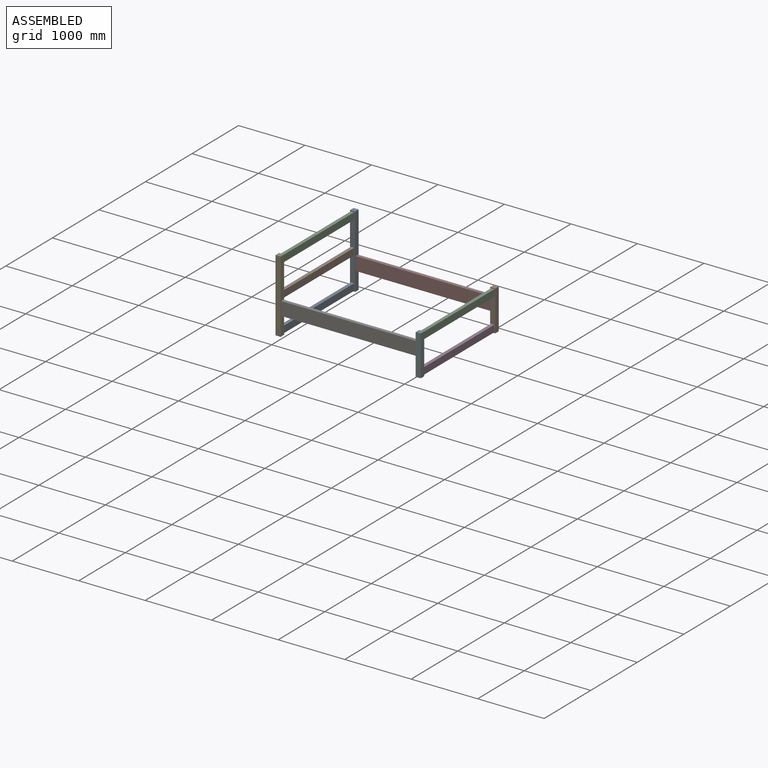
[diagram: assembled view]
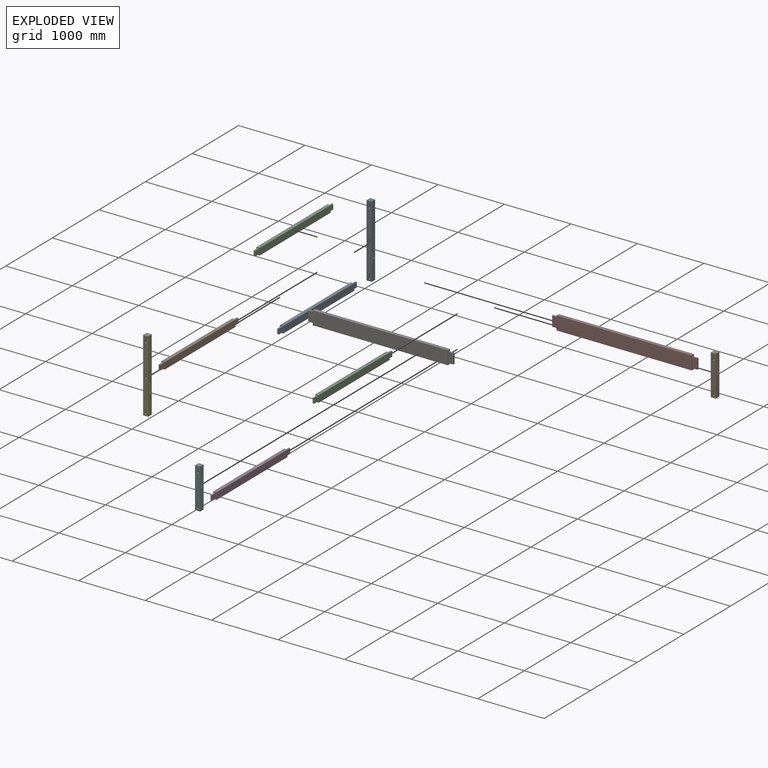
[diagram: exploded view]
GUIDED TOUR — MATED ASSEMBLY (Onshape document d018f66fdc39cf0276b17c4b, AutoMate assembly d018f66fdc39cf0276b17c4b_b09a5b12f9568f4a70d94d2d_86e8d41f319689054da1dff5_default)

This assembly has 11 components, labeled P0..P10 below (a component is one placed occurrence of a part; the same part can appear more than once), held together by 11 mates. A mate is a constraint between two components; its type names the relative motion it leaves free:
  FASTENED — locks the two components together rigidly (no relative motion).
Axis/direction vectors are unit vectors and 'through' points are millimeter coordinates, both in the assembly's world frame.

MATES
  1. FASTENED "Fastened 7": P9 <-> P10, direction (0.000, 1.000, 0.000) through (2096.86, 848.30, -7.22) mm
  2. FASTENED "Fastened 9": P3 <-> P9, direction (0.000, 1.000, 0.000) through (2071.46, 848.30, -489.82) mm
  3. FASTENED "Fastened 6": P5 <-> P10, direction (0.000, -1.000, 0.000) through (2096.86, -828.10, -7.22) mm
  4. FASTENED "Fastened 5": P5 <-> P6, direction (1.000, 0.000, 0.000) through (2122.26, -777.30, -134.22) mm
  5. FASTENED "Fastened 1": P7 <-> P0, direction (-1.000, 0.000, 0.000) through (-62.14, 797.50, -134.22) mm
  6. FASTENED "Fastened 10": P1 <-> P0, direction (0.000, 1.000, 0.000) through (-36.74, 848.30, -7.22) mm
  7. FASTENED "Fastened 8": P7 <-> P9, direction (1.000, 0.000, 0.000) through (2122.26, 797.50, -134.22) mm
  8. FASTENED "Fastened 2": P2 <-> P0, direction (0.000, 1.000, 0.000) through (-36.74, 848.30, 399.18) mm
  9. FASTENED "Fastened 11": P0 <-> P8, direction (0.000, 1.000, 0.000) through (-36.74, 848.30, -489.82) mm
  10. FASTENED "Fastened 4": P6 <-> P4, direction (1.000, 0.000, 0.000) through (-62.14, -802.70, -134.22) mm
  11. FASTENED "Fastened 3": P2 <-> P4, direction (0.000, -1.000, 0.000) through (-11.34, -828.10, 475.38) mm

ASSEMBLY ORDER
  1. P8 — the base component [order verified]
  2. P6 [order verified]
  3. P1 [order verified]
  4. P5 [order verified]
  5. P7 [order verified]
  6. P4 [order verified]
  7. P2 [order verified]
  8. P10 [order verified]
  9. P3 [order verified]
  10. P0 [order verified]
  11. P9 [order verified]
(P0, P2, P4 verified with a relaxed clearance tolerance: the source model stores slight part interference there.)
Order-tag legend:
  [order verified] — this step's position reverses a verified removal order: the component was checked to insert without passing through the ones already placed.

Of the 11 components, 11 carry the full construction recipe — the FeatureScript program that regenerates the part's solid from scratch; the rest are supplied as boundary geometry only.
Each toured component is shown spotlighted twice — in the assembled view, then in the exploded view, where a leader line traces a displaced component back to its assembled socket (saturated green if recipe-attached, orange if geometry-only; every other component desaturated gray) — followed by its recipe or geometry summary and the mates that hold it.
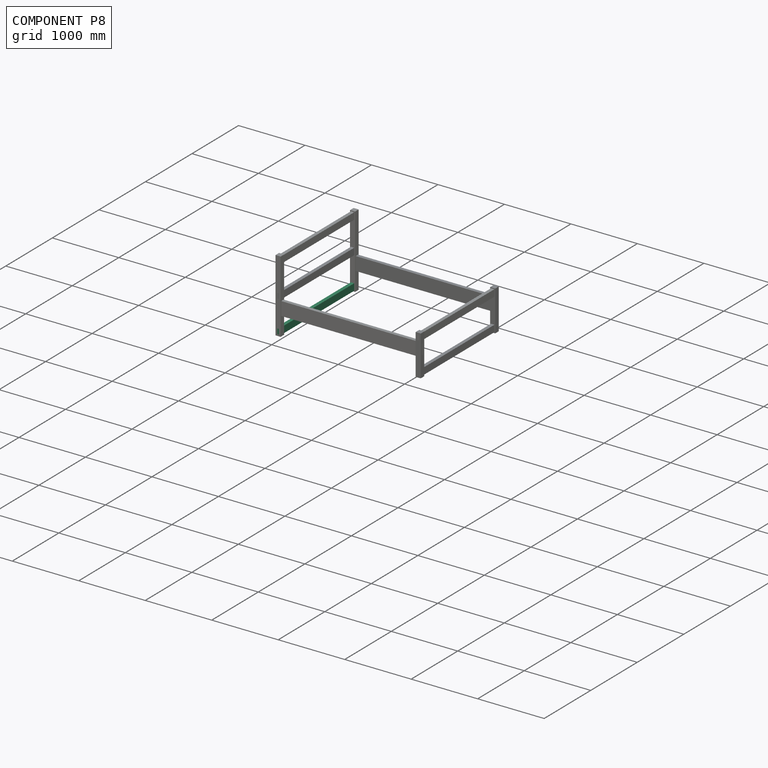
[diagram: component P8 — assembled]
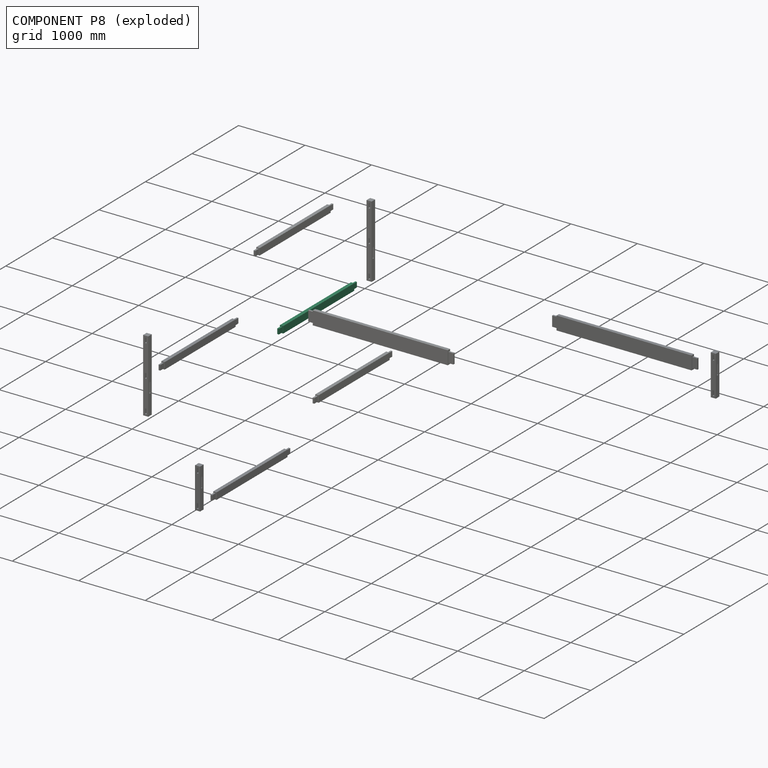
[diagram: component P8 — exploded]
COMPONENT P8 — same part as P1 (CADFS 00378331); its construction recipe is shown at P1.
Held by: FASTENED mate "Fastened 11" to P0.
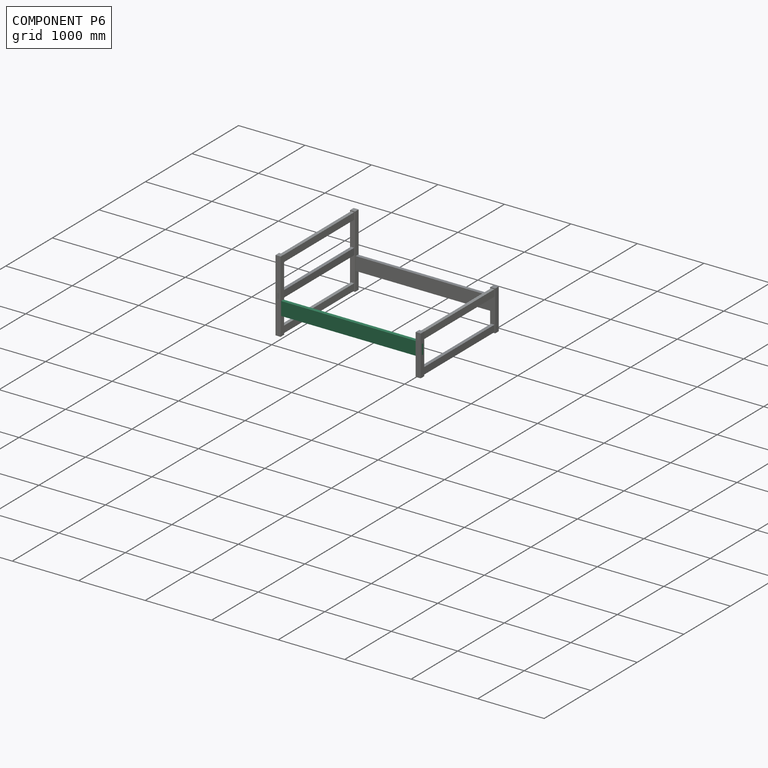
[diagram: component P6 — assembled]
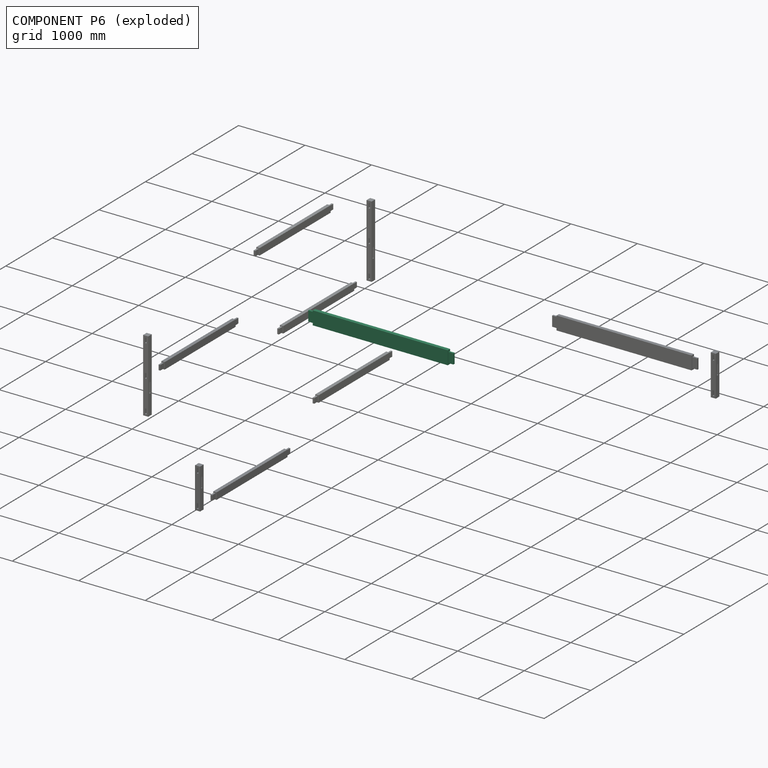
[diagram: component P6 — exploded]
COMPONENT P6 — recipe-attached (CADFS 00378326, mesh-verified: the recipe's output STEP matches this component's geometry to below the mesh-comparison resolution (tessellation chordal tolerance ~3.29 mm)).
Held by: FASTENED mate "Fastened 5" to P5; FASTENED mate "Fastened 4" to P4.
Construction recipe (FeatureScript — the CAD program that rebuilds this solid; sketch coordinates are in the units given by the * unit suffixes, e.g. mm):

FeatureScript 1511;
import(path : "onshape/std/geometry.fs", version : "1511.0");
import(path : "onshape/std/common.fs", version : "1511.0");
const mm = millimeter;
const VERTEX = EntityType.VERTEX;
const EDGE = EntityType.EDGE;
const FACE = EntityType.FACE;
const BODY = EntityType.BODY;
function v(x, y){return vector(x, y);}
function OD(order){return orderDisambiguation(order);}
function OSD(set){return originalSetDisambiguation(set);}
function TD(topology){return topologyDisambiguation(topology);}
function TDD(query){return trueDependencyDisambiguation(query);}
function sQuery(a, b, c) {return sketchEntityQuery(a, b, c);}

annotation { "Feature Type Name" : "Feature", "Feature Type Description" : "" }
export const myFeature = defineFeature(function(context is Context, id is Id, definition is map)
    precondition{}
    {
        {
            var Q0;
            Q0=qCreatedBy(makeId("Front.planeOp"),FACE);
            var sketch = newSketch(context, id + "F0", { "sketchPlane" : qUnion([Q0])});
            skLineSegment(sketch, "E0.bottom", {"start": v(-1016, 101.6) * mm, "end": v(1016, 101.6) * mm});
            skLineSegment(sketch, "E0.top", {"start": v(-1016, -101.6) * mm, "end": v(1016, -101.6) * mm});
            skLineSegment(sketch, "E0.left", {"start": v(-1016, 101.6) * mm, "end": v(-1016, -101.6) * mm});
            skLineSegment(sketch, "E0.right", {"start": v(1016, 101.6) * mm, "end": v(1016, -101.6) * mm});
            skSolve(sketch);
        }
        {
            var Q0;
            Q0=makeQuery(id+"F0.imprint","IMPRINT",FACE,{"disambiguationData":[TD([[makeQuery(id+"F0.imprint","IMPRINT",EDGE,{"derivedFrom":sQuery(id+"F0.wireOp",EDGE,"E0.bottom")}),-1.0]])]});
            extrude(context, id + "F1", {"entities" : qUnion([Q0]), "depth" : 25.4 * mm, "hasSecondDirection" : true, "secondDirectionOppositeDirection" : true, "secondDirectionDepth" : 25.4 * mm});
        }
        {
            var Q0;
            Q0=makeQuery(id+"F1.opExtrude","SWEPT_FACE",FACE,{"disambiguationData":[OSD([sQuery(id+"F0.wireOp",EDGE,"E0.right")])]});
            var sketch = newSketch(context, id + "F2", { "sketchPlane" : qUnion([Q0])});
            skLineSegment(sketch, "E1.bottom", {"start": v(-12.7, 76.2) * mm, "end": v(12.7, 76.2) * mm});
            skLineSegment(sketch, "E1.top", {"start": v(-12.7, -76.2) * mm, "end": v(12.7, -76.2) * mm});
            skLineSegment(sketch, "E1.left", {"start": v(-12.7, 76.2) * mm, "end": v(-12.7, -76.2) * mm});
            skLineSegment(sketch, "E1.right", {"start": v(12.7, 76.2) * mm, "end": v(12.7, -76.2) * mm});
            skSolve(sketch);
        }
        {
            var Q0;
            Q0=makeQuery(id+"F2.imprint","IMPRINT",FACE,{"disambiguationData":[TD([[makeQuery(id+"F2.imprint","IMPRINT",EDGE,{"derivedFrom":sQuery(id+"F2.wireOp",EDGE,"E1.bottom")}),-1.0]])]});
            extrude(context, id + "F3", {"entities" : qUnion([Q0]), "operationType" : NewBodyOperationType.ADD, "depth" : 76.2 * mm});
        }
        {
            var Q0;
            Q0=makeQuery(id+"F1.opExtrude","SWEPT_FACE",FACE,{"disambiguationData":[OSD([sQuery(id+"F0.wireOp",EDGE,"E0.left")])]});
            var sketch = newSketch(context, id + "F4", { "sketchPlane" : qUnion([Q0])});
            skLineSegment(sketch, "E2.bottom", {"start": v(-12.7, 76.2) * mm, "end": v(12.7, 76.2) * mm});
            skLineSegment(sketch, "E2.top", {"start": v(-12.7, -76.2) * mm, "end": v(12.7, -76.2) * mm});
            skLineSegment(sketch, "E2.left", {"start": v(-12.7, 76.2) * mm, "end": v(-12.7, -76.2) * mm});
            skLineSegment(sketch, "E2.right", {"start": v(12.7, 76.2) * mm, "end": v(12.7, -76.2) * mm});
            skSolve(sketch);
        }
        {
            var Q0;
            Q0=makeQuery(id+"F4.imprint","IMPRINT",FACE,{"disambiguationData":[TD([[makeQuery(id+"F4.imprint","IMPRINT",EDGE,{"derivedFrom":sQuery(id+"F4.wireOp",EDGE,"E2.bottom")}),-1.0]])]});
            extrude(context, id + "F5", {"entities" : qUnion([Q0]), "operationType" : NewBodyOperationType.ADD, "depth" : 76.2 * mm});
        }
    });
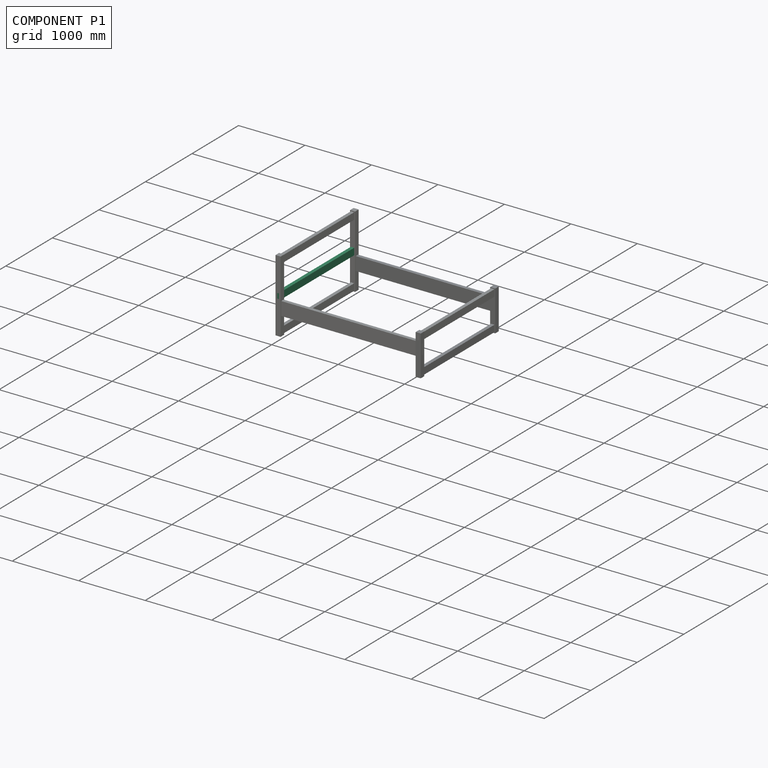
[diagram: component P1 — assembled]
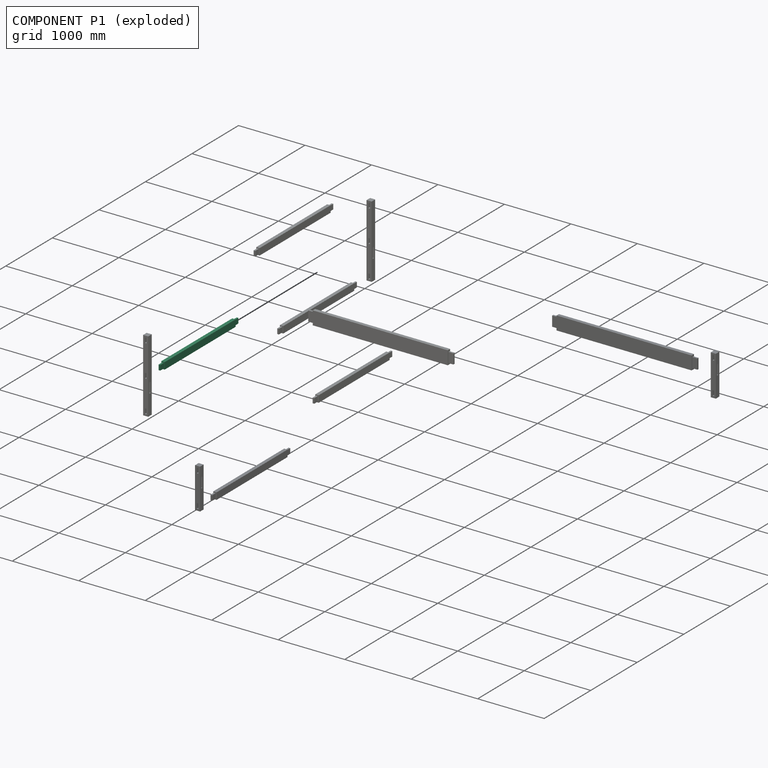
[diagram: component P1 — exploded]
COMPONENT P1 — recipe-attached (CADFS 00378331, mesh-verified: the recipe's output STEP matches this component's geometry to below the mesh-comparison resolution (tessellation chordal tolerance ~2.52 mm)).
Held by: FASTENED mate "Fastened 10" to P0.
Construction recipe (FeatureScript — the CAD program that rebuilds this solid; sketch coordinates are in the units given by the * unit suffixes, e.g. mm):

FeatureScript 1511;
import(path : "onshape/std/geometry.fs", version : "1511.0");
import(path : "onshape/std/common.fs", version : "1511.0");
const mm = millimeter;
const VERTEX = EntityType.VERTEX;
const EDGE = EntityType.EDGE;
const FACE = EntityType.FACE;
const BODY = EntityType.BODY;
function v(x, y){return vector(x, y);}
function OD(order){return orderDisambiguation(order);}
function OSD(set){return originalSetDisambiguation(set);}
function TD(topology){return topologyDisambiguation(topology);}
function TDD(query){return trueDependencyDisambiguation(query);}
function sQuery(a, b, c) {return sketchEntityQuery(a, b, c);}

annotation { "Feature Type Name" : "Feature", "Feature Type Description" : "" }
export const myFeature = defineFeature(function(context is Context, id is Id, definition is map)
    precondition{}
    {
        {
            var Q0;
            Q0=qCreatedBy(makeId("Right.planeOp"),FACE);
            var sketch = newSketch(context, id + "F0", { "sketchPlane" : qUnion([Q0])});
            skLineSegment(sketch, "E0.bottom", {"start": v(-762, 50.8) * mm, "end": v(762, 50.8) * mm});
            skLineSegment(sketch, "E0.top", {"start": v(-762, -50.8) * mm, "end": v(762, -50.8) * mm});
            skLineSegment(sketch, "E0.left", {"start": v(-762, 50.8) * mm, "end": v(-762, -50.8) * mm});
            skLineSegment(sketch, "E0.right", {"start": v(762, 50.8) * mm, "end": v(762, -50.8) * mm});
            skSolve(sketch);
        }
        {
            var Q0;
            Q0=makeQuery(id+"F0.imprint","IMPRINT",FACE,{"disambiguationData":[TD([[makeQuery(id+"F0.imprint","IMPRINT",EDGE,{"derivedFrom":sQuery(id+"F0.wireOp",EDGE,"E0.bottom")}),-1.0]])]});
            extrude(context, id + "F1", {"entities" : qUnion([Q0]), "depth" : 25.4 * mm, "hasSecondDirection" : true, "secondDirectionOppositeDirection" : true, "secondDirectionDepth" : 25.4 * mm});
        }
        {
            var Q0;
            Q0=makeQuery(id+"F1.opExtrude","SWEPT_FACE",FACE,{"disambiguationData":[OSD([sQuery(id+"F0.wireOp",EDGE,"E0.right")])]});
            var sketch = newSketch(context, id + "F2", { "sketchPlane" : qUnion([Q0])});
            skLineSegment(sketch, "E1.bottom", {"start": v(-12.7, 38.1) * mm, "end": v(12.7, 38.1) * mm});
            skLineSegment(sketch, "E1.top", {"start": v(-12.7, -38.1) * mm, "end": v(12.7, -38.1) * mm});
            skLineSegment(sketch, "E1.left", {"start": v(-12.7, 38.1) * mm, "end": v(-12.7, -38.1) * mm});
            skLineSegment(sketch, "E1.right", {"start": v(12.7, 38.1) * mm, "end": v(12.7, -38.1) * mm});
            skSolve(sketch);
        }
        {
            var Q0;
            Q0=makeQuery(id+"F2.imprint","IMPRINT",FACE,{"disambiguationData":[TD([[makeQuery(id+"F2.imprint","IMPRINT",EDGE,{"derivedFrom":sQuery(id+"F2.wireOp",EDGE,"E1.bottom")}),-1.0]])]});
            extrude(context, id + "F3", {"entities" : qUnion([Q0]), "operationType" : NewBodyOperationType.ADD, "depth" : 76.2 * mm});
        }
        {
            var Q0;
            Q0=makeQuery(id+"F1.opExtrude","SWEPT_FACE",FACE,{"disambiguationData":[OSD([sQuery(id+"F0.wireOp",EDGE,"E0.left")])]});
            var sketch = newSketch(context, id + "F4", { "sketchPlane" : qUnion([Q0])});
            skLineSegment(sketch, "E2.bottom", {"start": v(-12.7, 38.1) * mm, "end": v(12.7, 38.1) * mm});
            skLineSegment(sketch, "E2.top", {"start": v(-12.7, -38.1) * mm, "end": v(12.7, -38.1) * mm});
            skLineSegment(sketch, "E2.left", {"start": v(-12.7, 38.1) * mm, "end": v(-12.7, -38.1) * mm});
            skLineSegment(sketch, "E2.right", {"start": v(12.7, 38.1) * mm, "end": v(12.7, -38.1) * mm});
            skSolve(sketch);
        }
        {
            var Q0;
            Q0=makeQuery(id+"F4.imprint","IMPRINT",FACE,{"disambiguationData":[TD([[makeQuery(id+"F4.imprint","IMPRINT",EDGE,{"derivedFrom":sQuery(id+"F4.wireOp",EDGE,"E2.bottom")}),-1.0]])]});
            extrude(context, id + "F5", {"entities" : qUnion([Q0]), "operationType" : NewBodyOperationType.ADD, "depth" : 76.2 * mm});
        }
    });
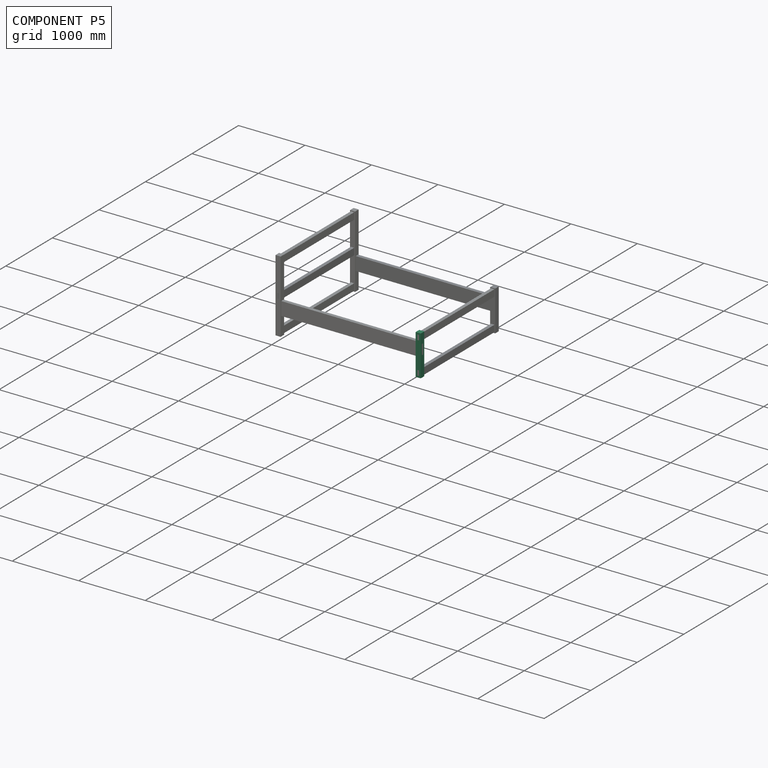
[diagram: component P5 — assembled]
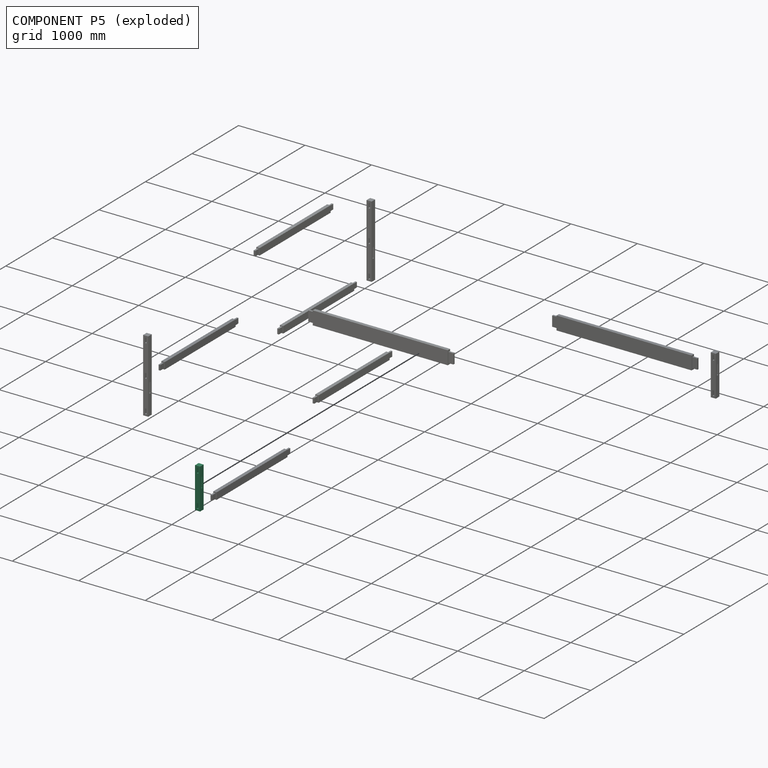
[diagram: component P5 — exploded]
COMPONENT P5 — recipe-attached (CADFS 00378308, mesh-verified: the recipe's output STEP matches this component's geometry to below the mesh-comparison resolution (tessellation chordal tolerance ~0.929 mm)).
Held by: FASTENED mate "Fastened 6" to P10; FASTENED mate "Fastened 5" to P6.
Construction recipe (FeatureScript — the CAD program that rebuilds this solid; sketch coordinates are in the units given by the * unit suffixes, e.g. mm):

FeatureScript 1511;
import(path : "onshape/std/geometry.fs", version : "1511.0");
import(path : "onshape/std/common.fs", version : "1511.0");
const mm = millimeter;
const VERTEX = EntityType.VERTEX;
const EDGE = EntityType.EDGE;
const FACE = EntityType.FACE;
const BODY = EntityType.BODY;
function v(x, y){return vector(x, y);}
function OD(order){return orderDisambiguation(order);}
function OSD(set){return originalSetDisambiguation(set);}
function TD(topology){return topologyDisambiguation(topology);}
function TDD(query){return trueDependencyDisambiguation(query);}
function sQuery(a, b, c) {return sketchEntityQuery(a, b, c);}

annotation { "Feature Type Name" : "Feature", "Feature Type Description" : "" }
export const myFeature = defineFeature(function(context is Context, id is Id, definition is map)
    precondition{}
    {
        {
            var Q0;
            Q0=qCreatedBy(makeId("Right.planeOp"),FACE);
            var sketch = newSketch(context, id + "F0", { "sketchPlane" : qUnion([Q0])});
            skLineSegment(sketch, "E0.bottom", {"start": v(-12.7, -88.9) * mm, "end": v(12.7, -88.9) * mm});
            skLineSegment(sketch, "E0.top", {"start": v(-12.7, -241.3) * mm, "end": v(12.7, -241.3) * mm});
            skLineSegment(sketch, "E0.left", {"start": v(-12.7, -88.9) * mm, "end": v(-12.7, -241.3) * mm});
            skLineSegment(sketch, "E0.right", {"start": v(12.7, -88.9) * mm, "end": v(12.7, -241.3) * mm});
            skLineSegment(sketch, "E1.bottom", {"start": v(-38.1, 63.5) * mm, "end": v(38.1, 63.5) * mm});
            skLineSegment(sketch, "E1.top", {"start": v(-38.1, -546.1) * mm, "end": v(38.1, -546.1) * mm});
            skLineSegment(sketch, "E1.left", {"start": v(-38.1, 63.5) * mm, "end": v(-38.1, -546.1) * mm});
            skLineSegment(sketch, "E1.right", {"start": v(38.1, 63.5) * mm, "end": v(38.1, -546.1) * mm});
            skSolve(sketch);
        }
        {
            var Q0;
            Q0 = qSketchRegion(id + "F0", true);
            extrude(context, id + "F1", {"entities" : qUnion([Q0]), "depth" : 38.1 * mm, "hasSecondDirection" : true, "secondDirectionOppositeDirection" : true, "secondDirectionDepth" : 38.1 * mm});
        }
        {
            var Q0;
            Q0=makeQuery(id+"F1.opExtrude","SWEPT_FACE",FACE,{"disambiguationData":[OSD([sQuery(id+"F0.wireOp",EDGE,"E1.left")])]});
            var sketch = newSketch(context, id + "F2", { "sketchPlane" : qUnion([Q0])});
            skLineSegment(sketch, "E2.bottom", {"start": v(-12.7, 38.1) * mm, "end": v(12.7, 38.1) * mm});
            skLineSegment(sketch, "E2.top", {"start": v(-12.7, -38.1) * mm, "end": v(12.7, -38.1) * mm});
            skLineSegment(sketch, "E2.left", {"start": v(-12.7, 38.1) * mm, "end": v(-12.7, -38.1) * mm});
            skLineSegment(sketch, "E2.right", {"start": v(12.7, 38.1) * mm, "end": v(12.7, -38.1) * mm});
            skLineSegment(sketch, "E3.bottom", {"start": v(-12.7, -444.5) * mm, "end": v(12.7, -444.5) * mm});
            skLineSegment(sketch, "E3.top", {"start": v(-12.7, -520.7) * mm, "end": v(12.7, -520.7) * mm});
            skLineSegment(sketch, "E3.left", {"start": v(-12.7, -444.5) * mm, "end": v(-12.7, -520.7) * mm});
            skLineSegment(sketch, "E3.right", {"start": v(12.7, -444.5) * mm, "end": v(12.7, -520.7) * mm});
            skSolve(sketch);
        }
        {
            var Q0;
            Q0=makeQuery(id+"F2.imprint","IMPRINT",FACE,{"disambiguationData":[TD([[makeQuery(id+"F2.imprint","IMPRINT",EDGE,{"derivedFrom":sQuery(id+"F2.wireOp",EDGE,"E2.bottom")}),-1.0]])]});
            var Q1;
            Q1=makeQuery(id+"F2.imprint","IMPRINT",FACE,{"disambiguationData":[TD([[makeQuery(id+"F2.imprint","IMPRINT",EDGE,{"derivedFrom":sQuery(id+"F2.wireOp",EDGE,"E3.bottom")}),-1.0]])]});
            extrude(context, id + "F3", {"entities" : qUnion([Q0, Q1]), "operationType" : NewBodyOperationType.REMOVE, "oppositeDirection" : true, "depth" : 101.6 * mm});
        }
    });
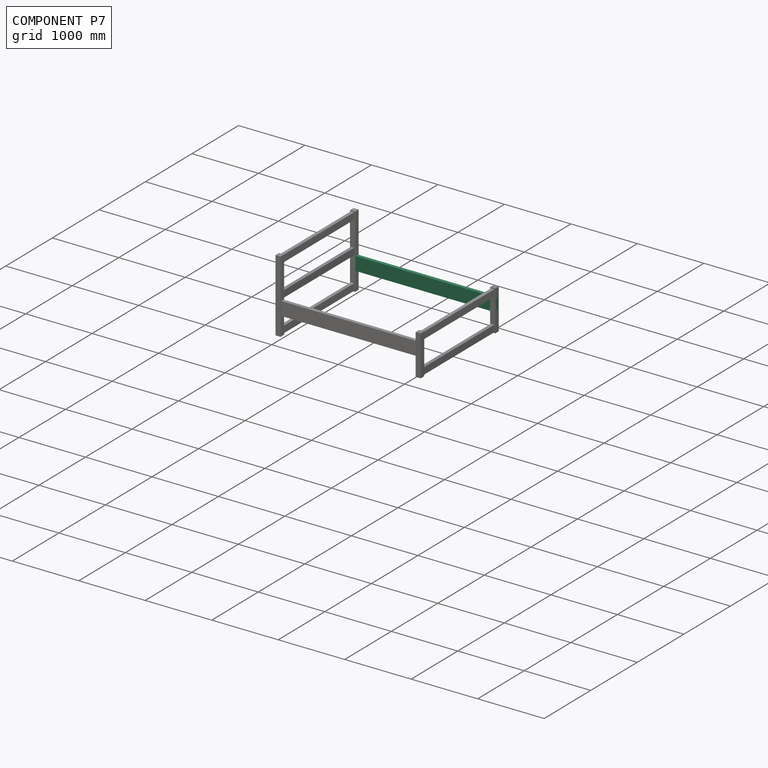
[diagram: component P7 — assembled]
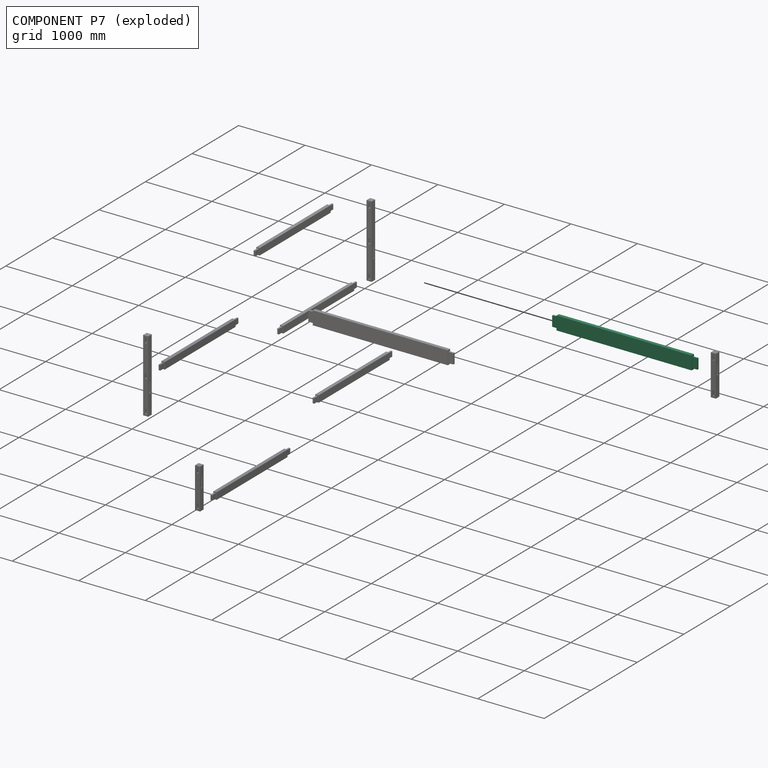
[diagram: component P7 — exploded]
COMPONENT P7 — same part as P6 (CADFS 00378326); its construction recipe is shown at P6.
Held by: FASTENED mate "Fastened 1" to P0; FASTENED mate "Fastened 8" to P9.
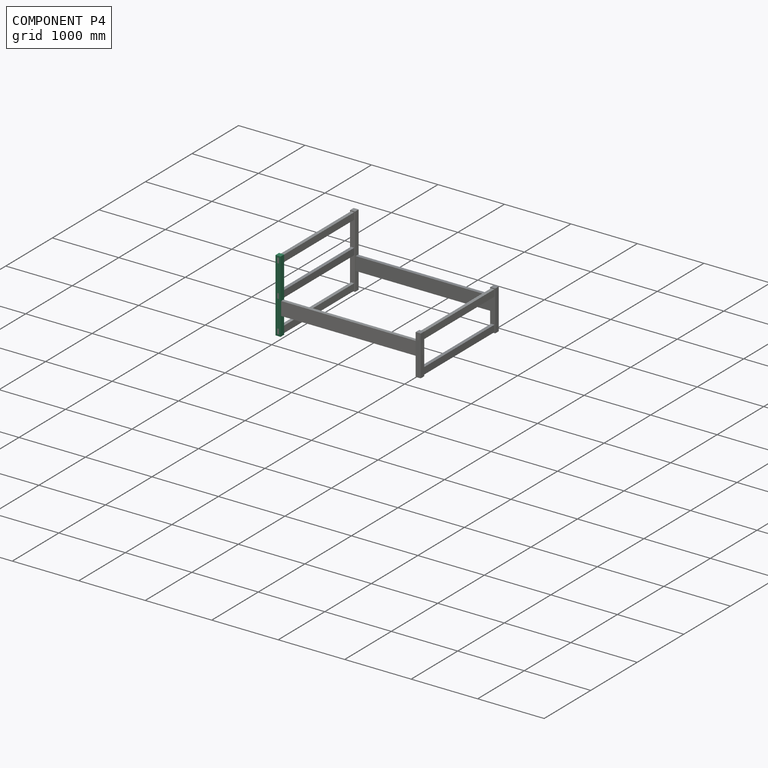
[diagram: component P4 — assembled]
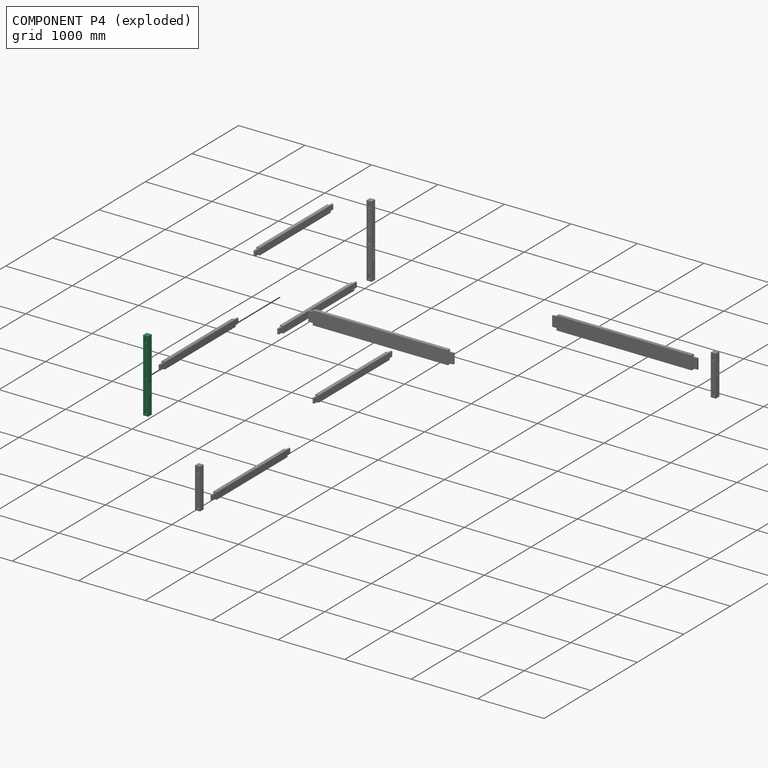
[diagram: component P4 — exploded]
COMPONENT P4 — same part as P0 (CADFS 00378162); its construction recipe is shown at P0.
Held by: FASTENED mate "Fastened 4" to P6; FASTENED mate "Fastened 3" to P2.
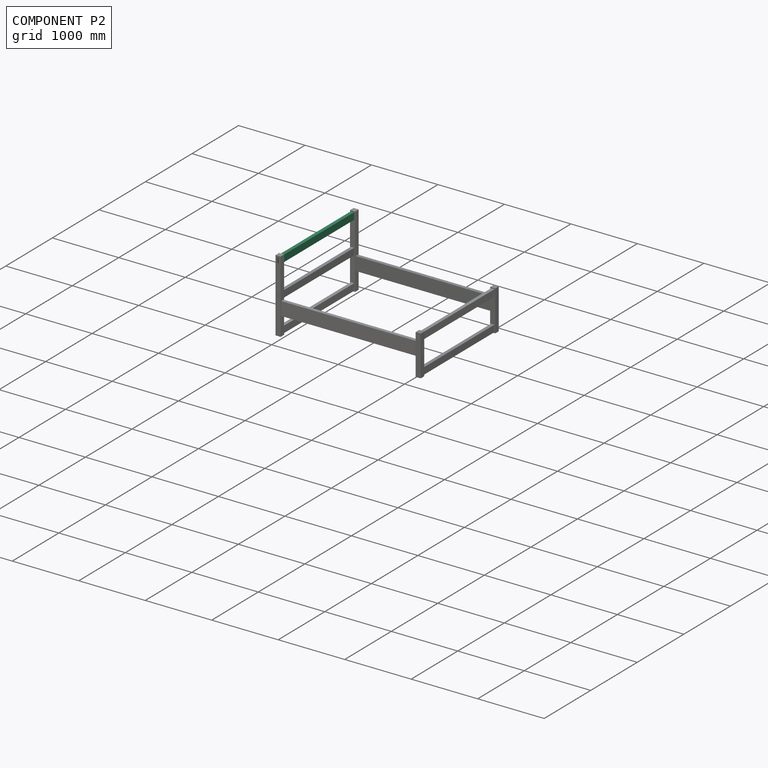
[diagram: component P2 — assembled]
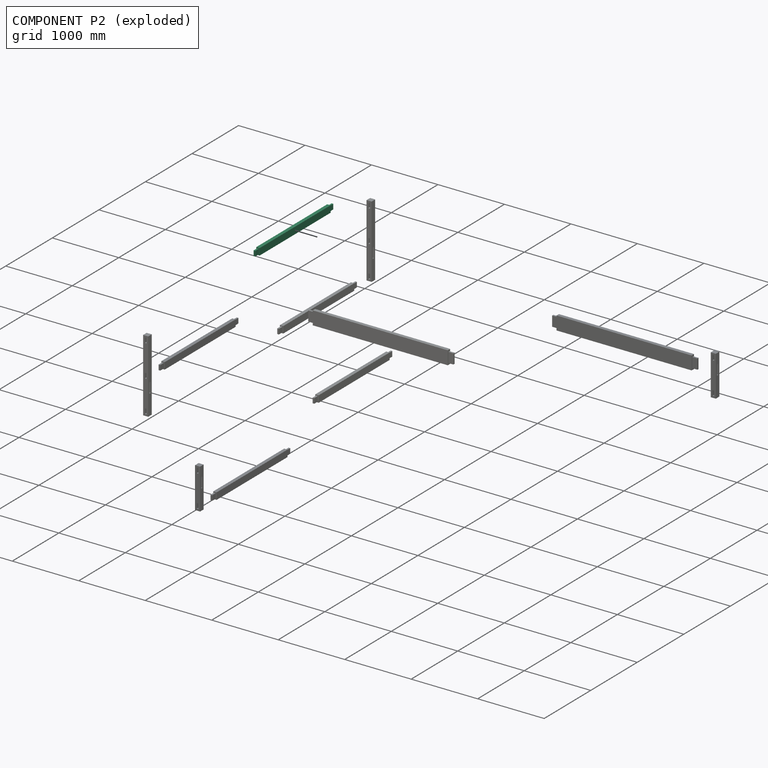
[diagram: component P2 — exploded]
COMPONENT P2 — same part as P1 (CADFS 00378331); its construction recipe is shown at P1.
Held by: FASTENED mate "Fastened 2" to P0; FASTENED mate "Fastened 3" to P4.
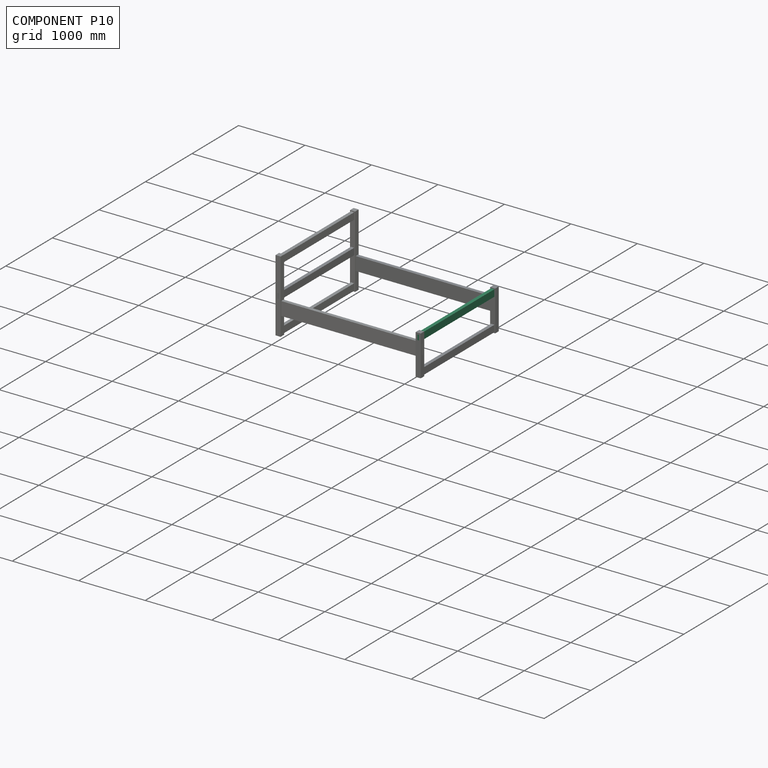
[diagram: component P10 — assembled]
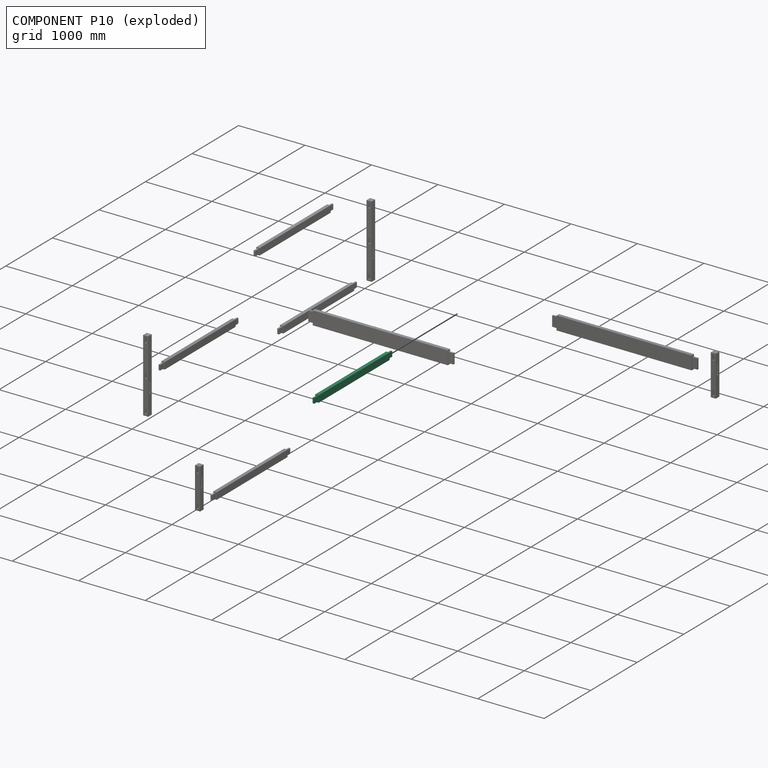
[diagram: component P10 — exploded]
COMPONENT P10 — same part as P1 (CADFS 00378331); its construction recipe is shown at P1.
Held by: FASTENED mate "Fastened 7" to P9; FASTENED mate "Fastened 6" to P5.
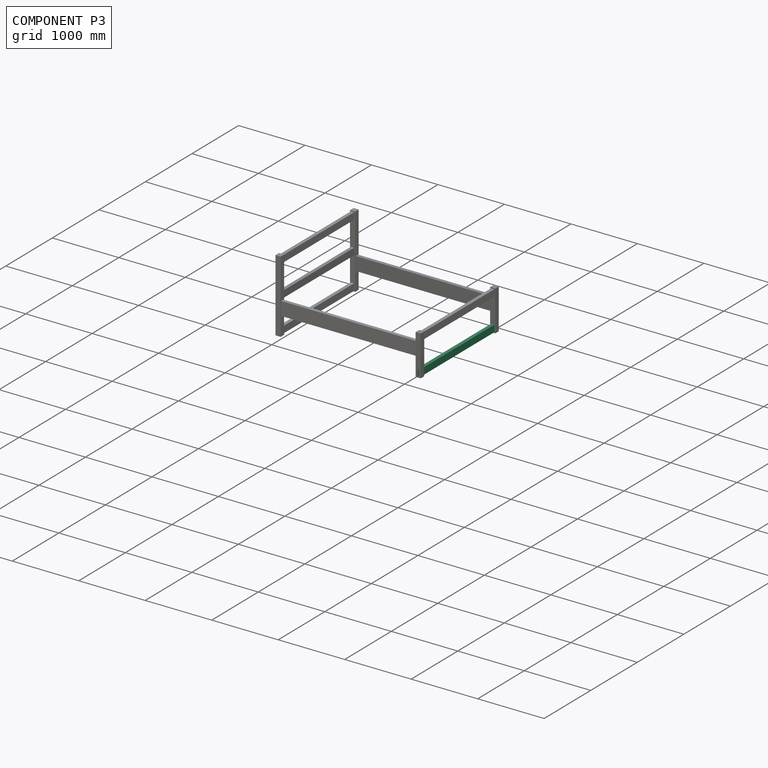
[diagram: component P3 — assembled]
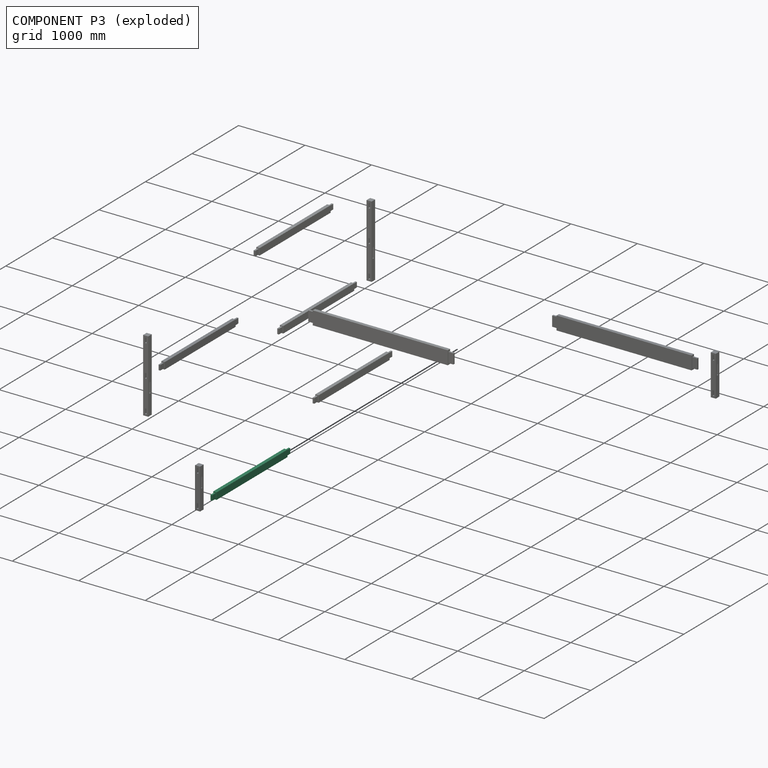
[diagram: component P3 — exploded]
COMPONENT P3 — same part as P1 (CADFS 00378331); its construction recipe is shown at P1.
Held by: FASTENED mate "Fastened 9" to P9.
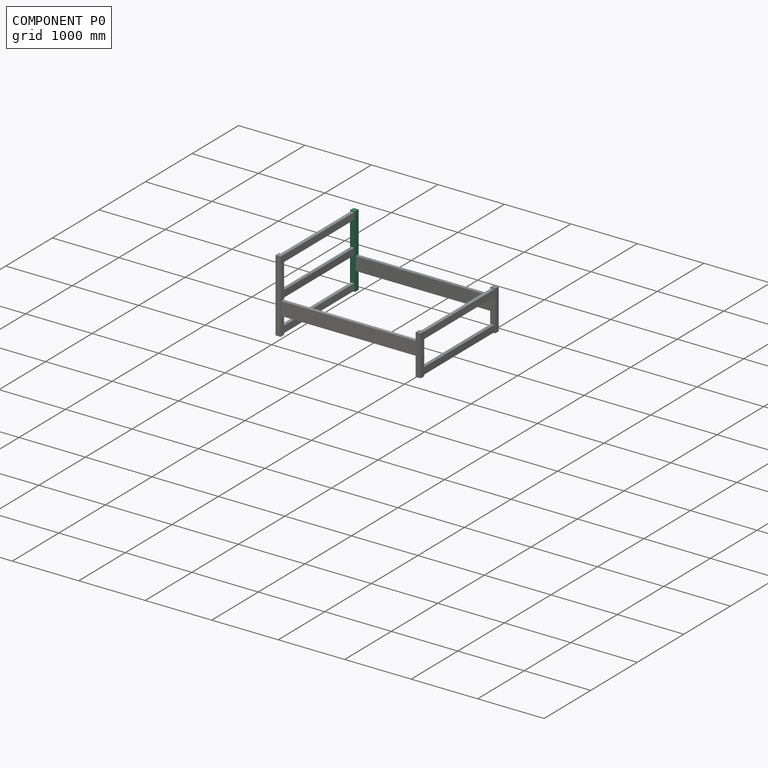
[diagram: component P0 — assembled]
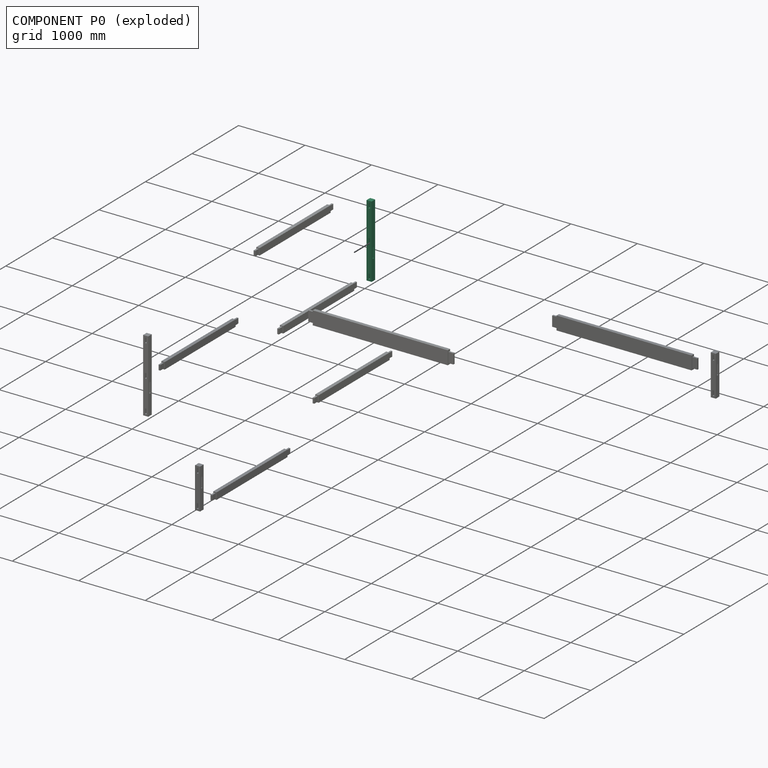
[diagram: component P0 — exploded]
COMPONENT P0 — recipe-attached (CADFS 00378162, mesh-verified: the recipe's output STEP matches this component's geometry to below the mesh-comparison resolution (tessellation chordal tolerance ~1.65 mm)).
Held by: FASTENED mate "Fastened 1" to P7; FASTENED mate "Fastened 10" to P1; FASTENED mate "Fastened 2" to P2; FASTENED mate "Fastened 11" to P8.
Construction recipe (FeatureScript — the CAD program that rebuilds this solid; sketch coordinates are in the units given by the * unit suffixes, e.g. mm):

FeatureScript 1511;
import(path : "onshape/std/geometry.fs", version : "1511.0");
import(path : "onshape/std/common.fs", version : "1511.0");
const mm = millimeter;
const VERTEX = EntityType.VERTEX;
const EDGE = EntityType.EDGE;
const FACE = EntityType.FACE;
const BODY = EntityType.BODY;
function v(x, y){return vector(x, y);}
function OD(order){return orderDisambiguation(order);}
function OSD(set){return originalSetDisambiguation(set);}
function TD(topology){return topologyDisambiguation(topology);}
function TDD(query){return trueDependencyDisambiguation(query);}
function sQuery(a, b, c) {return sketchEntityQuery(a, b, c);}

annotation { "Feature Type Name" : "Feature", "Feature Type Description" : "" }
export const myFeature = defineFeature(function(context is Context, id is Id, definition is map)
    precondition{}
    {
        {
            var Q0;
            Q0=qCreatedBy(makeId("Front.planeOp"),FACE);
            var sketch = newSketch(context, id + "F0", { "sketchPlane" : qUnion([Q0])});
            skLineSegment(sketch, "E0.bottom", {"start": v(-38.1, 546.1) * mm, "end": v(38.1, 546.1) * mm});
            skLineSegment(sketch, "E0.top", {"start": v(-38.1, -546.1) * mm, "end": v(38.1, -546.1) * mm});
            skLineSegment(sketch, "E0.left", {"start": v(-38.1, 546.1) * mm, "end": v(-38.1, -546.1) * mm});
            skLineSegment(sketch, "E0.right", {"start": v(38.1, 546.1) * mm, "end": v(38.1, -546.1) * mm});
            skLineSegment(sketch, "E1.bottom", {"start": v(-12.7, 520.7) * mm, "end": v(12.7, 520.7) * mm});
            skLineSegment(sketch, "E1.top", {"start": v(-12.7, 444.5) * mm, "end": v(12.7, 444.5) * mm});
            skLineSegment(sketch, "E1.left", {"start": v(-12.7, 520.7) * mm, "end": v(-12.7, 444.5) * mm});
            skLineSegment(sketch, "E1.right", {"start": v(12.7, 520.7) * mm, "end": v(12.7, 444.5) * mm});
            skLineSegment(sketch, "E2.bottom", {"start": v(-12.7, 38.1) * mm, "end": v(12.7, 38.1) * mm});
            skLineSegment(sketch, "E2.top", {"start": v(-12.7, -38.1) * mm, "end": v(12.7, -38.1) * mm});
            skLineSegment(sketch, "E2.left", {"start": v(-12.7, 38.1) * mm, "end": v(-12.7, -38.1) * mm});
            skLineSegment(sketch, "E2.right", {"start": v(12.7, 38.1) * mm, "end": v(12.7, -38.1) * mm});
            skLineSegment(sketch, "E3.bottom", {"start": v(-12.7, -444.5) * mm, "end": v(12.7, -444.5) * mm});
            skLineSegment(sketch, "E3.top", {"start": v(-12.7, -520.7) * mm, "end": v(12.7, -520.7) * mm});
            skLineSegment(sketch, "E3.left", {"start": v(-12.7, -444.5) * mm, "end": v(-12.7, -520.7) * mm});
            skLineSegment(sketch, "E3.right", {"start": v(12.7, -444.5) * mm, "end": v(12.7, -520.7) * mm});
            skSolve(sketch);
        }
        {
            var Q0;
            Q0 = qSketchRegion(id + "F0", true);
            extrude(context, id + "F1", {"entities" : qUnion([Q0]), "depth" : 38.1 * mm, "hasSecondDirection" : true, "secondDirectionOppositeDirection" : true, "secondDirectionDepth" : 38.1 * mm});
        }
        {
            var Q0;
            Q0=makeQuery(id+"F1.opExtrude","SWEPT_FACE",FACE,{"disambiguationData":[OSD([sQuery(id+"F0.wireOp",EDGE,"E0.right")])]});
            var sketch = newSketch(context, id + "F2", { "sketchPlane" : qUnion([Q0])});
            skLineSegment(sketch, "E4.bottom", {"start": v(-12.7, -88.9) * mm, "end": v(12.7, -88.9) * mm});
            skLineSegment(sketch, "E4.top", {"start": v(-12.7, -241.3) * mm, "end": v(12.7, -241.3) * mm});
            skLineSegment(sketch, "E4.left", {"start": v(-12.7, -88.9) * mm, "end": v(-12.7, -241.3) * mm});
            skLineSegment(sketch, "E4.right", {"start": v(12.7, -88.9) * mm, "end": v(12.7, -241.3) * mm});
            skSolve(sketch);
        }
        {
            var Q0;
            Q0 = qSketchRegion(id + "F2", true);
            extrude(context, id + "F3", {"entities" : qUnion([Q0]), "operationType" : NewBodyOperationType.REMOVE, "oppositeDirection" : true, "depth" : 101.6 * mm});
        }
    });
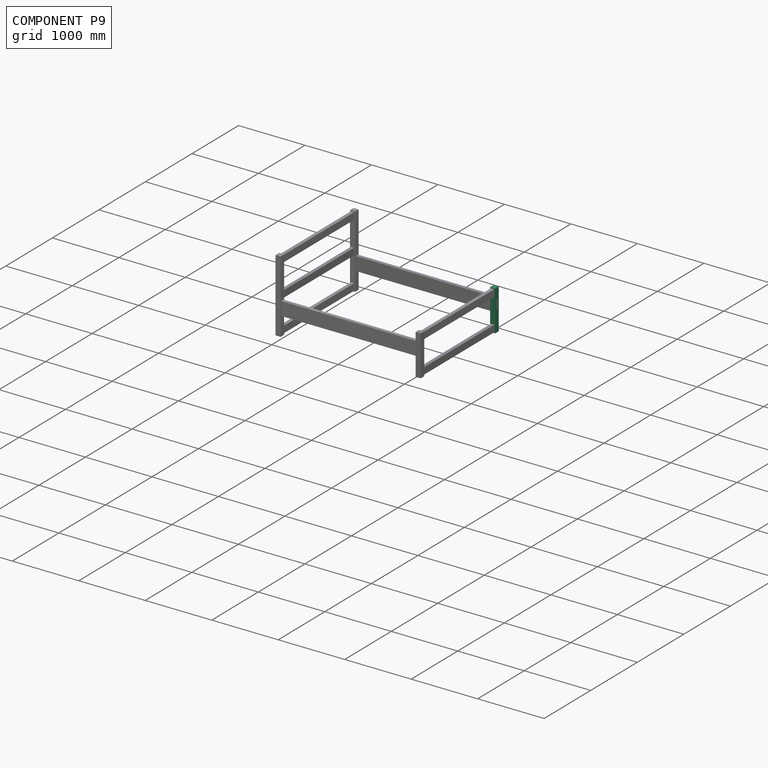
[diagram: component P9 — assembled]
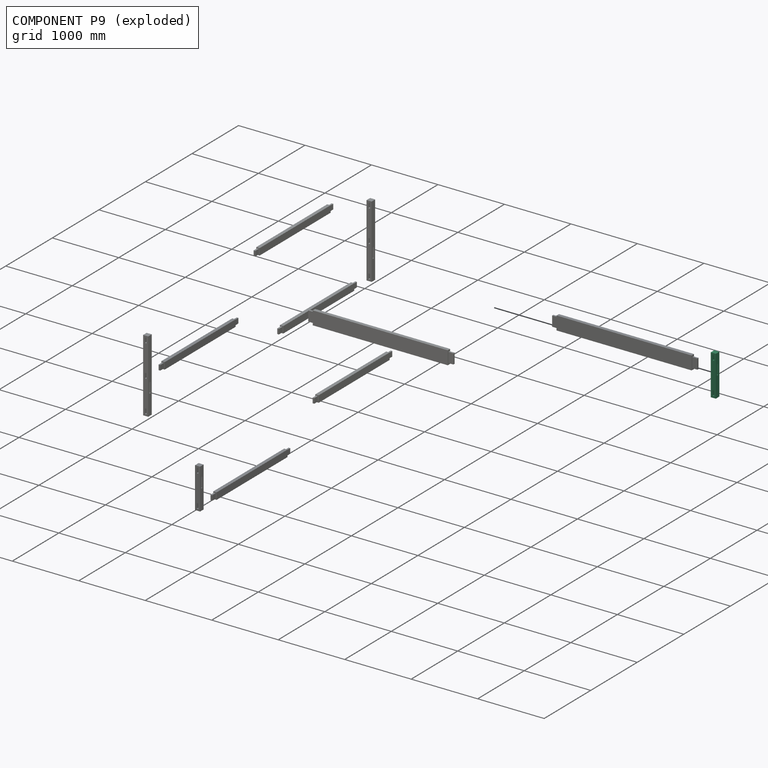
[diagram: component P9 — exploded]
COMPONENT P9 — same part as P5 (CADFS 00378308); its construction recipe is shown at P5.
Held by: FASTENED mate "Fastened 7" to P10; FASTENED mate "Fastened 9" to P3; FASTENED mate "Fastened 8" to P7.
PROVENANCE & LICENSES
Assembly (occurrences, transforms, mates, per-part STEP geometry): AutoMate dataset, Zenodo record 7776208, CC0.
Construction recipes: CADFS (HuggingFace VladPyatov/CADFS, CC-BY-4.0, layered over the ABC dataset), FeatureScript reconstruction programs keyed by ABC model id.
Join: ABC meta listings map ABC model id -> Onshape documentId; within a shared document, parts are matched by geometric signature (bounding-box dims + volume at 0.1% relative tolerance, exact B-rep face/solid counts).
Verification: 11 of this assembly's 11 components carry a recipe attachment, and every attachment is mesh-verified: the CADFS STEP and the AutoMate member STEP were compared as meshes in their shared local frame (symmetric sampled-point-to-mesh distance); worst across the 11 attachments: below the mesh-comparison resolution (tessellation chordal tolerance ~3.29 mm) on a 2194 mm part.
Renders: orthographic iso camera (az 35 / el 25); the floor grid conveys scale (grid pitch printed in each image; no ruler). In the exploded view each component is displaced by its stored offset vector: the offsets alone carry the explosion direction (mate normal/axis signs are not orientation cues and do not encode it), and separation distances are assigned per mate-chain, not proportionally to assembly-order depth.
